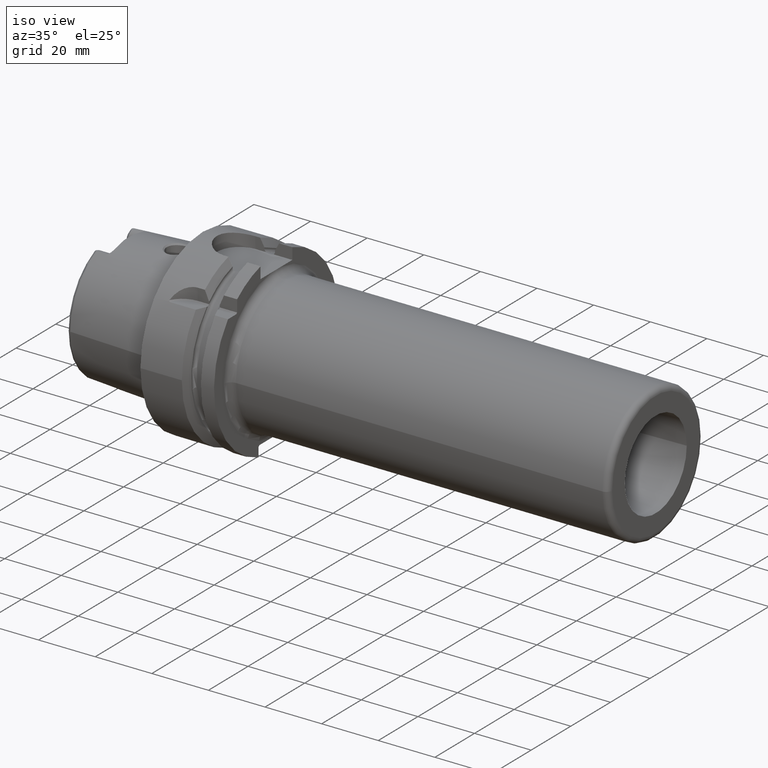
[diagram: clean part render]
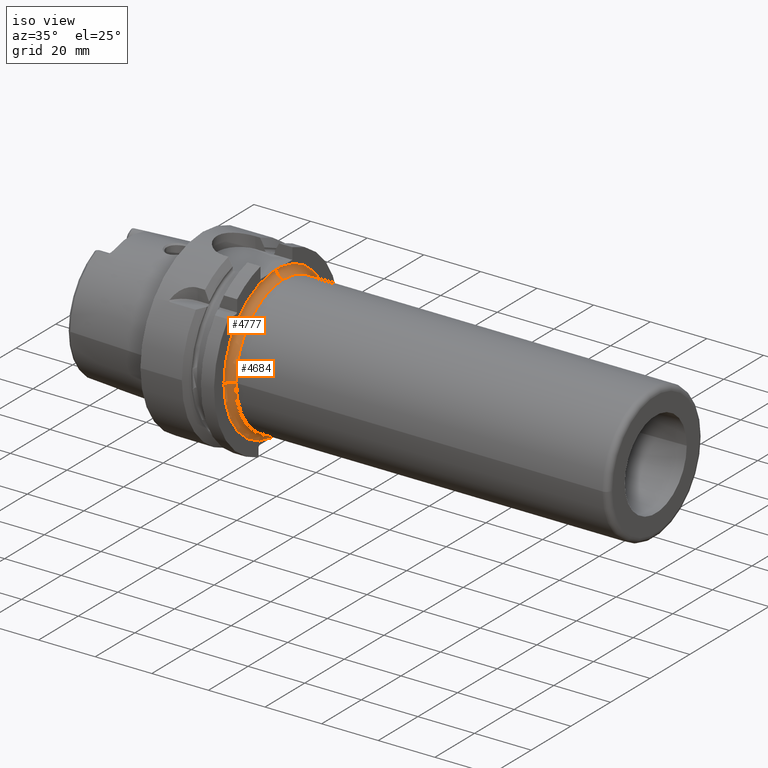
[diagram: same view with one multi-face feature highlighted, each face labeled with its STEP entity id]
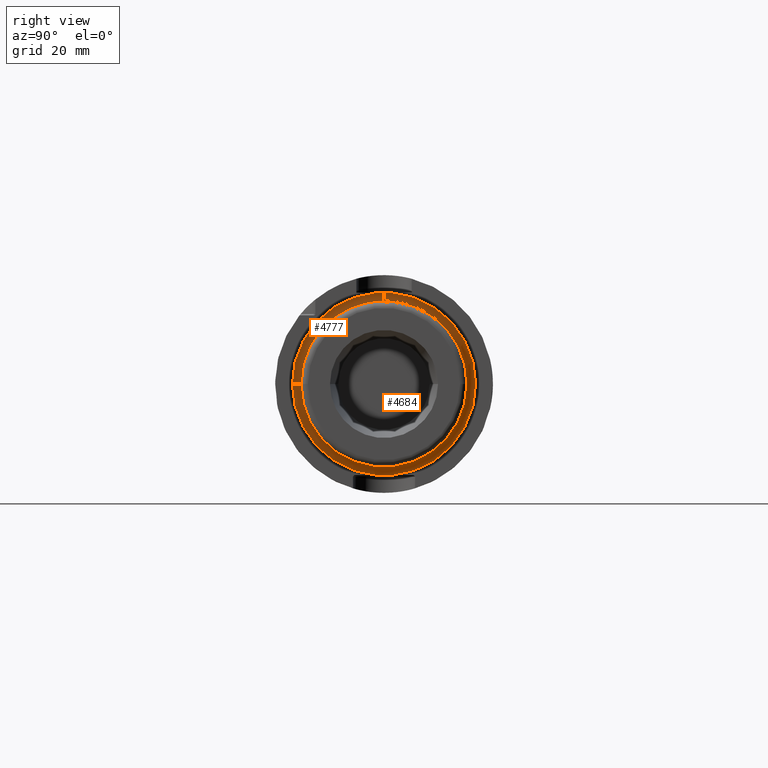
[diagram: same view with one multi-face feature highlighted, each face labeled with its STEP entity id]
A machine part, iso view. The highlighted faces form ONE feature: a constant-radius fillet chain: 2 tangent blend faces with common blend radius 2.5 mm. The faces share edges in the B-rep.
A second angle (right view) of the same feature is appended — it is thin or edge-on in the first view.
Their STEP definitions:
[1] entity #4684 (Torus):
#1482=CARTESIAN_POINT('',(2.6E1,2.300021454024E0,-2.639999683509E1));
#1483=CARTESIAN_POINT('',(2.6E1,1.789016761998E0,-2.639999683509E1));
#1484=CARTESIAN_POINT('',(2.600210659852E1,7.668981932987E-1,
-2.640000106056E1));
#1485=CARTESIAN_POINT('',(2.600210659850E1,-7.668982109026E-1,
-2.640000103539E1));
#1486=CARTESIAN_POINT('',(2.6E1,-1.789016726657E0,-2.639999687705E1));
#1487=CARTESIAN_POINT('',(2.6E1,-2.300021416499E0,-2.639999687705E1));
#1489=CARTESIAN_POINT('',(2.85E1,-2.65E1,4.056477376224E-14));
#1490=DIRECTION('',(0.E0,0.E0,-1.E0));
#1491=DIRECTION('',(-1.E0,0.E0,0.E0));
#1492=AXIS2_PLACEMENT_3D('',#1489,#1490,#1491);
#1494=CARTESIAN_POINT('',(2.85E1,0.E0,0.E0));
#1495=DIRECTION('',(1.E0,0.E0,0.E0));
#1496=DIRECTION('',(0.E0,-1.E0,0.E0));
#1497=AXIS2_PLACEMENT_3D('',#1494,#1495,#1496);
#1499=CARTESIAN_POINT('',(2.6E1,0.E0,0.E0));
#1500=DIRECTION('',(-1.E0,0.E0,0.E0));
#1501=DIRECTION('',(0.E0,8.679080978254E-2,9.962265582373E-1));
#1502=AXIS2_PLACEMENT_3D('',#1499,#1500,#1501);
#1520=CARTESIAN_POINT('',(2.6E1,0.E0,0.E0));
#1521=DIRECTION('',(1.E0,0.E0,0.E0));
#1522=DIRECTION('',(0.E0,-1.E0,0.E0));
#1523=AXIS2_PLACEMENT_3D('',#1520,#1521,#1522);
#1554=CARTESIAN_POINT('',(2.600200080064E1,-3.065819589909E-6,2.64E1));
#1574=CARTESIAN_POINT('',(2.6E1,2.300021317689E0,2.639999686866E1));
#1575=CARTESIAN_POINT('',(2.6E1,2.044940906993E0,2.639999686866E1));
#1576=CARTESIAN_POINT('',(2.600057278892E1,1.534426422101E0,2.640000146129E1));
#1577=CARTESIAN_POINT('',(2.600168647744E1,7.672989968797E-1,2.639999958249E1));
#1578=CARTESIAN_POINT('',(2.600200080183E1,2.558211266983E-1,2.64E1));
#1579=CARTESIAN_POINT('',(2.600200080064E1,-3.065819589909E-6,2.64E1));
#1581=CARTESIAN_POINT('',(2.85E1,-3.077432552900E-6,2.65E1));
#1582=DIRECTION('',(0.E0,-1.E0,-1.161295302983E-7));
#1583=DIRECTION('',(-9.991996797437E-1,4.645181211922E-9,-3.999999999993E-2));
#1584=AXIS2_PLACEMENT_3D('',#1581,#1582,#1583);
#1596=CARTESIAN_POINT('',(2.85E1,0.E0,0.E0));
#1597=DIRECTION('',(1.E0,0.E0,0.E0));
#1598=DIRECTION('',(0.E0,1.E0,0.E0));
#1599=AXIS2_PLACEMENT_3D('',#1596,#1597,#1598);
#3103=CARTESIAN_POINT('',(2.85E1,2.4E1,0.E0));
#3104=CARTESIAN_POINT('',(2.85E1,-3.756979017359E-6,2.4E1));
#3105=VERTEX_POINT('',#3103);
#3106=VERTEX_POINT('',#3104);
#3107=CARTESIAN_POINT('',(2.85E1,-2.4E1,-1.538584762143E-12));
#3108=VERTEX_POINT('',#3107);
#3121=CARTESIAN_POINT('',(2.6E1,-2.65E1,1.704610008657E-14));
#3122=CARTESIAN_POINT('',(2.6E1,-2.299957040099E0,-2.640000374268E1));
#3123=VERTEX_POINT('',#3121);
#3124=VERTEX_POINT('',#3122);
#3127=VERTEX_POINT('',#1554);
#3128=VERTEX_POINT('',#1574);
#3129=CARTESIAN_POINT('',(2.6E1,2.300021454024E0,-2.639999683509E1));
#3130=VERTEX_POINT('',#3129);
#4662=CARTESIAN_POINT('',(2.85E1,0.E0,0.E0));
#4663=DIRECTION('',(1.E0,0.E0,0.E0));
#4664=DIRECTION('',(0.E0,9.999948687983E-1,-3.203494520729E-3));
#4665=AXIS2_PLACEMENT_3D('',#4662,#4663,#4664);
#4666=TOROIDAL_SURFACE('',#4665,2.65E1,2.5E0);
#4667=ORIENTED_EDGE('',*,*,#4636,.T.);
#4669=ORIENTED_EDGE('',*,*,#4668,.F.);
#4671=ORIENTED_EDGE('',*,*,#4670,.T.);
#4673=ORIENTED_EDGE('',*,*,#4672,.T.);
#4675=ORIENTED_EDGE('',*,*,#4674,.T.);
#4677=ORIENTED_EDGE('',*,*,#4676,.F.);
#4679=ORIENTED_EDGE('',*,*,#4678,.F.);
#4681=ORIENTED_EDGE('',*,*,#4680,.T.);
#4682=EDGE_LOOP('',(#4667,#4669,#4671,#4673,#4675,#4677,#4679,#4681));
#4683=FACE_OUTER_BOUND('',#4682,.F.);
#4684=ADVANCED_FACE('',(#4683),#4666,.F.);
#1488=B_SPLINE_CURVE_WITH_KNOTS('',3,(#1482,#1483,#1484,#1485,#1486,#1487),
.UNSPECIFIED.,.F.,.F.,(4,1,1,4),(0.E0,3.333333333333E-1,6.666666666667E-1,1.E0),
.UNSPECIFIED.);
#1493=CIRCLE('',#1492,2.5E0);
#1498=CIRCLE('',#1497,2.4E1);
#1503=CIRCLE('',#1502,2.65E1);
#1524=CIRCLE('',#1523,2.65E1);
#1580=B_SPLINE_CURVE_WITH_KNOTS('',3,(#1574,#1575,#1576,#1577,#1578,#1579),
.UNSPECIFIED.,.F.,.F.,(4,1,1,4),(0.E0,3.333333333333E-1,6.666666666667E-1,1.E0),
.UNSPECIFIED.);
#1585=CIRCLE('',#1584,2.5E0);
#1600=CIRCLE('',#1599,2.4E1);
#4636=EDGE_CURVE('',#3130,#3124,#1488,.T.);
#4668=EDGE_CURVE('',#3123,#3124,#1524,.T.);
#4670=EDGE_CURVE('',#3123,#3108,#1493,.T.);
#4672=EDGE_CURVE('',#3108,#3105,#1498,.T.);
#4674=EDGE_CURVE('',#3105,#3106,#1600,.T.);
#4676=EDGE_CURVE('',#3127,#3106,#1585,.T.);
#4678=EDGE_CURVE('',#3128,#3127,#1580,.T.);
#4680=EDGE_CURVE('',#3128,#3130,#1503,.T.);
[2] entity #4777 (Torus):
#1489=CARTESIAN_POINT('',(2.85E1,-2.65E1,4.056477376224E-14));
#1490=DIRECTION('',(0.E0,0.E0,-1.E0));
#1491=DIRECTION('',(-1.E0,0.E0,0.E0));
#1492=AXIS2_PLACEMENT_3D('',#1489,#1490,#1491);
#1549=CARTESIAN_POINT('',(2.6E1,0.E0,0.E0));
#1550=DIRECTION('',(1.E0,0.E0,0.E0));
#1551=DIRECTION('',(0.E0,-8.679080481231E-2,9.962265586703E-1));
#1552=AXIS2_PLACEMENT_3D('',#1549,#1550,#1551);
#1554=CARTESIAN_POINT('',(2.600200080064E1,-3.065819589909E-6,2.64E1));
#1555=CARTESIAN_POINT('',(2.600200079945E1,-2.558301698135E-1,2.64E1));
#1556=CARTESIAN_POINT('',(2.600168646421E1,-7.673116129769E-1,
2.639999957687E1));
#1557=CARTESIAN_POINT('',(2.600057276085E1,-1.534444141033E0,2.640000148094E1));
#1558=CARTESIAN_POINT('',(2.6E1,-2.044948870204E0,2.639999682656E1));
#1559=CARTESIAN_POINT('',(2.6E1,-2.300021756764E0,2.639999682656E1));
#1581=CARTESIAN_POINT('',(2.85E1,-3.077432552900E-6,2.65E1));
#1582=DIRECTION('',(0.E0,-1.E0,-1.161295302983E-7));
#1583=DIRECTION('',(-9.991996797437E-1,4.645181211922E-9,-3.999999999993E-2));
#1584=AXIS2_PLACEMENT_3D('',#1581,#1582,#1583);
#1591=CARTESIAN_POINT('',(2.85E1,0.E0,0.E0));
#1592=DIRECTION('',(1.E0,0.E0,0.E0));
#1593=DIRECTION('',(0.E0,-1.565407923900E-7,1.E0));
#1594=AXIS2_PLACEMENT_3D('',#1591,#1592,#1593);
#3104=CARTESIAN_POINT('',(2.85E1,-3.756979017359E-6,2.4E1));
#3106=VERTEX_POINT('',#3104);
#3107=CARTESIAN_POINT('',(2.85E1,-2.4E1,-1.538584762143E-12));
#3108=VERTEX_POINT('',#3107);
#3121=CARTESIAN_POINT('',(2.6E1,-2.65E1,1.704610008657E-14));
#3123=VERTEX_POINT('',#3121);
#3125=CARTESIAN_POINT('',(2.6E1,-2.299956327526E0,2.640000380476E1));
#3126=VERTEX_POINT('',#3125);
#3127=VERTEX_POINT('',#1554);
#4764=CARTESIAN_POINT('',(2.85E1,0.E0,0.E0));
#4765=DIRECTION('',(1.E0,0.E0,0.E0));
#4766=DIRECTION('',(0.E0,1.485959642860E-3,-9.999988959614E-1));
#4767=AXIS2_PLACEMENT_3D('',#4764,#4765,#4766);
#4768=TOROIDAL_SURFACE('',#4767,2.65E1,2.5E0);
#4769=ORIENTED_EDGE('',*,*,#4728,.F.);
#4770=ORIENTED_EDGE('',*,*,#4738,.F.);
#4771=ORIENTED_EDGE('',*,*,#4676,.T.);
#4773=ORIENTED_EDGE('',*,*,#4772,.T.);
#4774=ORIENTED_EDGE('',*,*,#4670,.F.);
#4775=EDGE_LOOP('',(#4769,#4770,#4771,#4773,#4774));
#4776=FACE_OUTER_BOUND('',#4775,.F.);
#4777=ADVANCED_FACE('',(#4776),#4768,.F.);
#1493=CIRCLE('',#1492,2.5E0);
#1553=CIRCLE('',#1552,2.65E1);
#1560=B_SPLINE_CURVE_WITH_KNOTS('',3,(#1554,#1555,#1556,#1557,#1558,#1559),
.UNSPECIFIED.,.F.,.F.,(4,1,1,4),(0.E0,3.333333333333E-1,6.666666666667E-1,1.E0),
.UNSPECIFIED.);
#1585=CIRCLE('',#1584,2.5E0);
#1595=CIRCLE('',#1594,2.4E1);
#4670=EDGE_CURVE('',#3123,#3108,#1493,.T.);
#4676=EDGE_CURVE('',#3127,#3106,#1585,.T.);
#4728=EDGE_CURVE('',#3126,#3123,#1553,.T.);
#4738=EDGE_CURVE('',#3127,#3126,#1560,.T.);
#4772=EDGE_CURVE('',#3106,#3108,#1595,.T.);